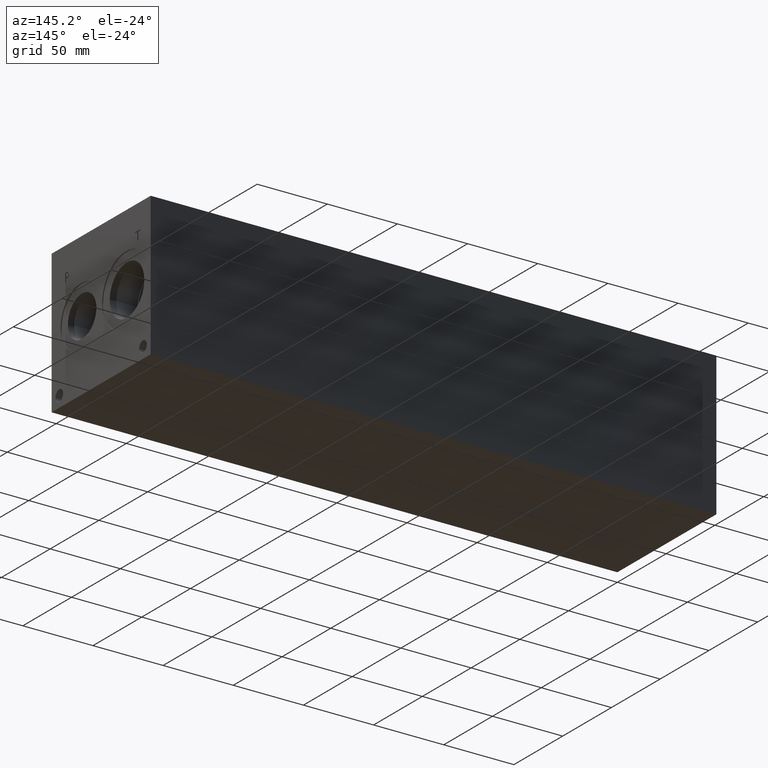
[diagram: clean part render]
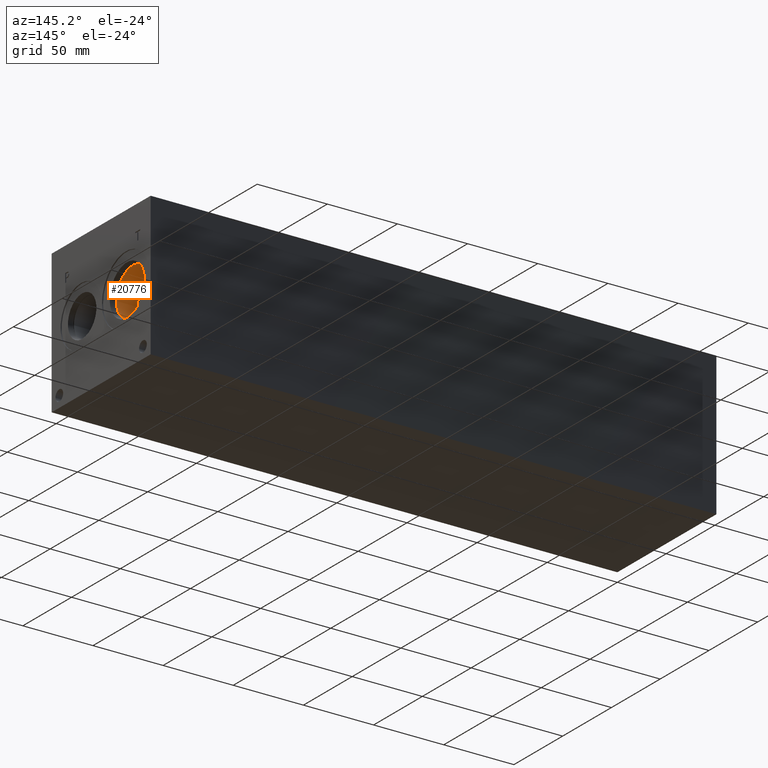
[diagram: same view with one face highlighted and labeled with its STEP entity id]
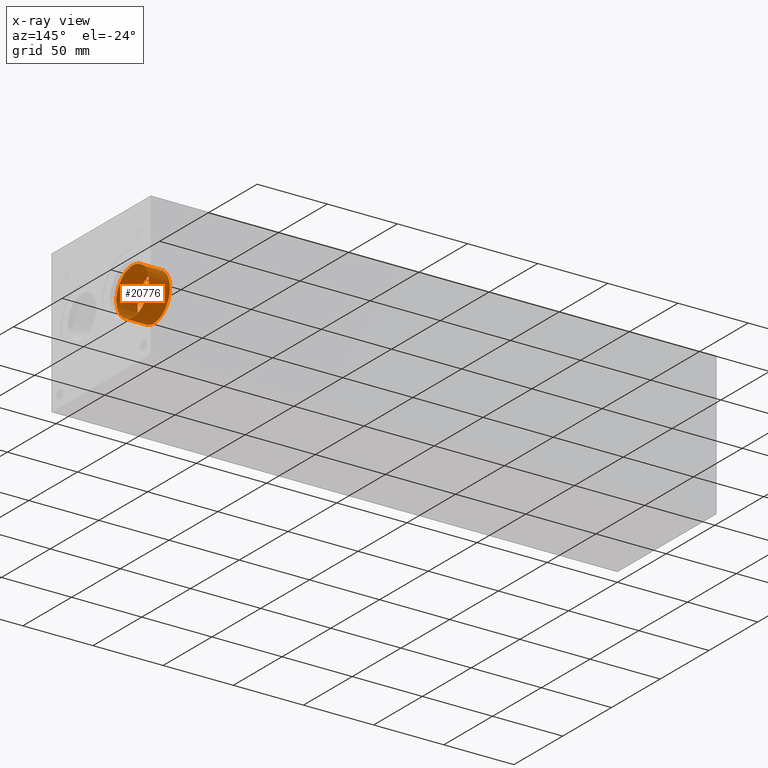
[diagram: x-ray of the same camera — body ghosted, the highlighted face saturated]
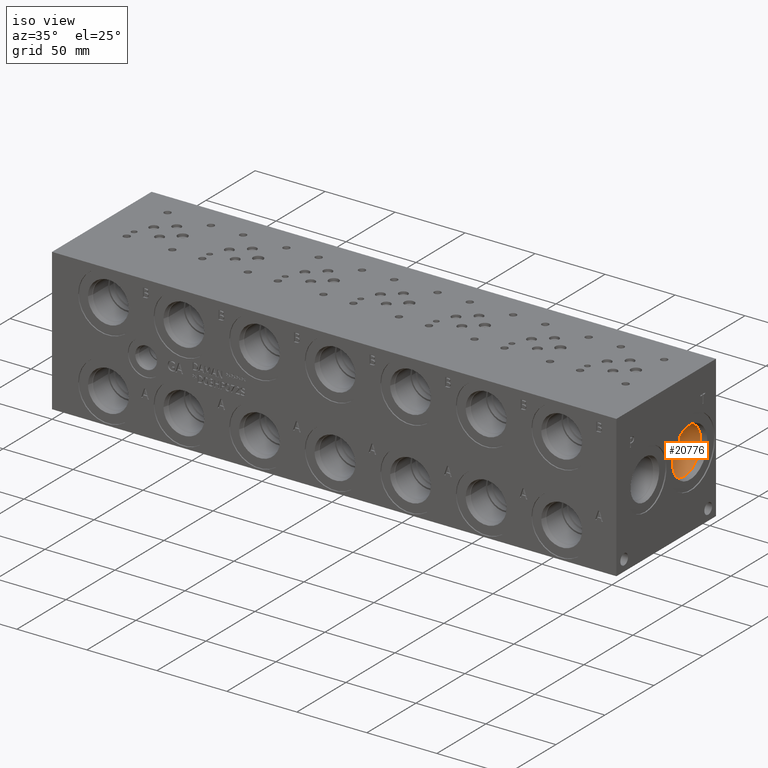
[diagram: same view with one face highlighted and labeled with its STEP entity id]
A machine part, auxiliary view. The second image highlights one B-rep face of the part: STEP entity #20776.
The next image is the same camera in x-ray: the body ghosted, the highlighted face saturated — about 0% of this face is hidden behind the body in this view.
A second angle (iso view) of the same face is appended — the face is thin or edge-on in the first view.
In plain terms, the highlighted cylindrical surface (bore or boss wall) has radius 16.6751 mm, axis along (1, 0, 0).
Its self-contained STEP definition (entity closure, byte-faithful):
#24=CYLINDRICAL_SURFACE('',#21762,16.6751);
#448=CIRCLE('',#21759,16.6751);
#449=CIRCLE('',#21760,16.6751);
#451=CIRCLE('',#21763,16.6751);
#2715=FACE_OUTER_BOUND('',#3924,.T.);
#3924=EDGE_LOOP('',(#16799,#16800,#16801,#16802,#16803));
#5876=LINE('',#34728,#7631);
#7631=VECTOR('',#25390,16.6751);
#9282=VERTEX_POINT('',#34719);
#9283=VERTEX_POINT('',#34720);
#9285=VERTEX_POINT('',#34726);
#11977=EDGE_CURVE('',#9282,#9283,#448,.T.);
#11978=EDGE_CURVE('',#9283,#9282,#449,.T.);
#11980=EDGE_CURVE('',#9285,#9285,#451,.T.);
#11981=EDGE_CURVE('',#9285,#9283,#5876,.T.);
#16799=ORIENTED_EDGE('',*,*,#11980,.F.);
#16800=ORIENTED_EDGE('',*,*,#11981,.T.);
#16801=ORIENTED_EDGE('',*,*,#11977,.F.);
#16802=ORIENTED_EDGE('',*,*,#11978,.F.);
#16803=ORIENTED_EDGE('',*,*,#11981,.F.);
#20776=ADVANCED_FACE('',(#2715),#24,.F.);
#21759=AXIS2_PLACEMENT_3D('',#34721,#25380,#25381);
#21760=AXIS2_PLACEMENT_3D('',#34722,#25382,#25383);
#21762=AXIS2_PLACEMENT_3D('',#34725,#25386,#25387);
#21763=AXIS2_PLACEMENT_3D('',#34727,#25388,#25389);
#25380=DIRECTION('center_axis',(1.,0.,0.));
#25381=DIRECTION('ref_axis',(0.,1.,0.));
#25382=DIRECTION('center_axis',(1.,0.,0.));
#25383=DIRECTION('ref_axis',(0.,1.,0.));
#25386=DIRECTION('center_axis',(1.,0.,0.));
#25387=DIRECTION('ref_axis',(0.,1.,0.));
#25388=DIRECTION('center_axis',(-1.,0.,0.));
#25389=DIRECTION('ref_axis',(0.,1.,0.));
#25390=DIRECTION('',(-1.,0.,0.));
#34719=CARTESIAN_POINT('',(383.3876,92.8751,50.8));
#34720=CARTESIAN_POINT('',(383.3876,59.5249,50.8));
#34721=CARTESIAN_POINT('Origin',(383.3876,76.2,50.8));
#34722=CARTESIAN_POINT('Origin',(383.3876,76.2,50.8));
#34725=CARTESIAN_POINT('Origin',(393.3063,76.2,50.8));
#34726=CARTESIAN_POINT('',(398.401321153229,59.5249,50.8));
#34727=CARTESIAN_POINT('Origin',(398.401321153229,76.2,50.8));
#34728=CARTESIAN_POINT('',(393.3063,59.5249,50.8));